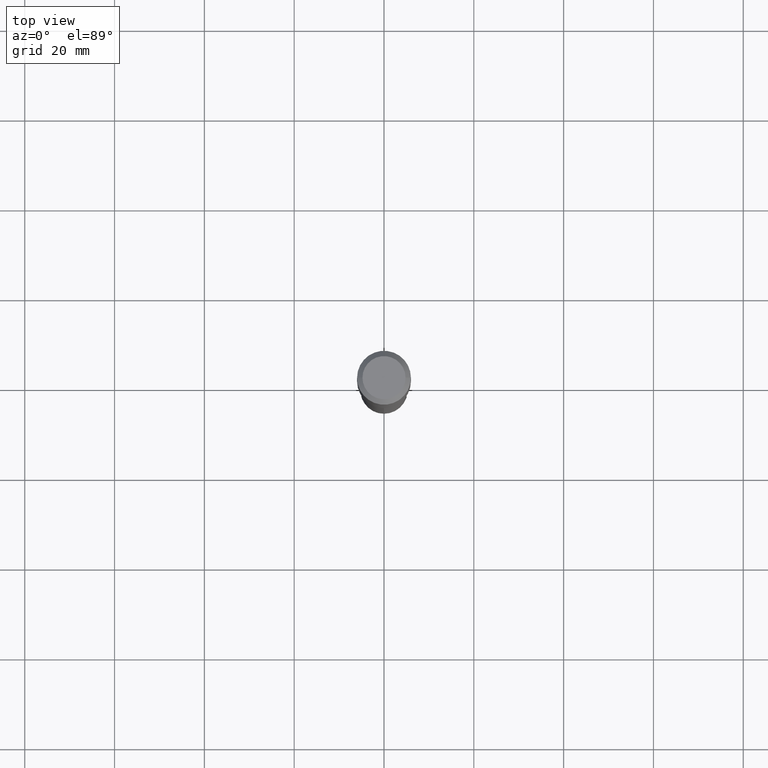
[diagram: clean part render]
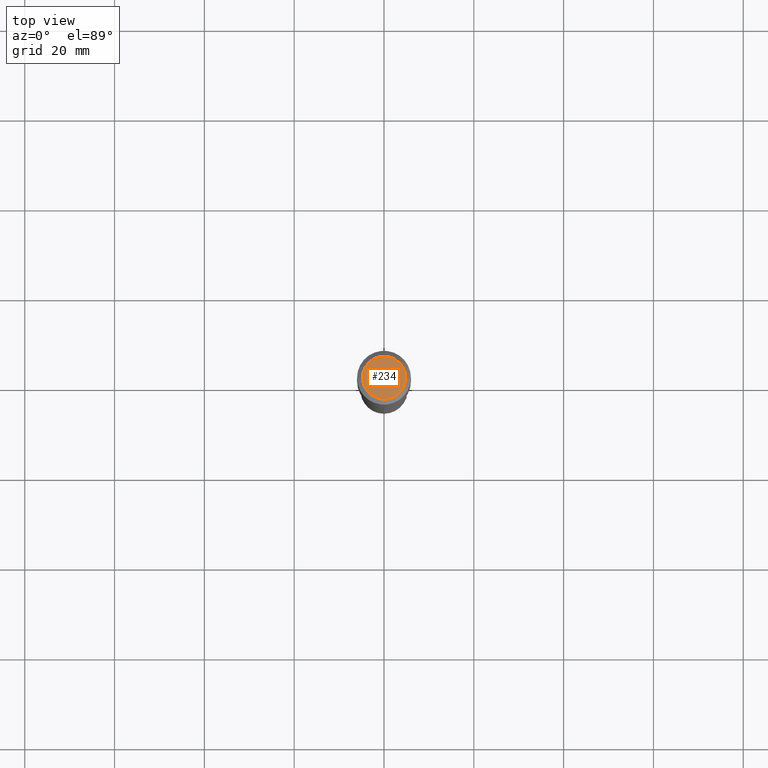
[diagram: same view with one face highlighted and labeled with its STEP entity id]
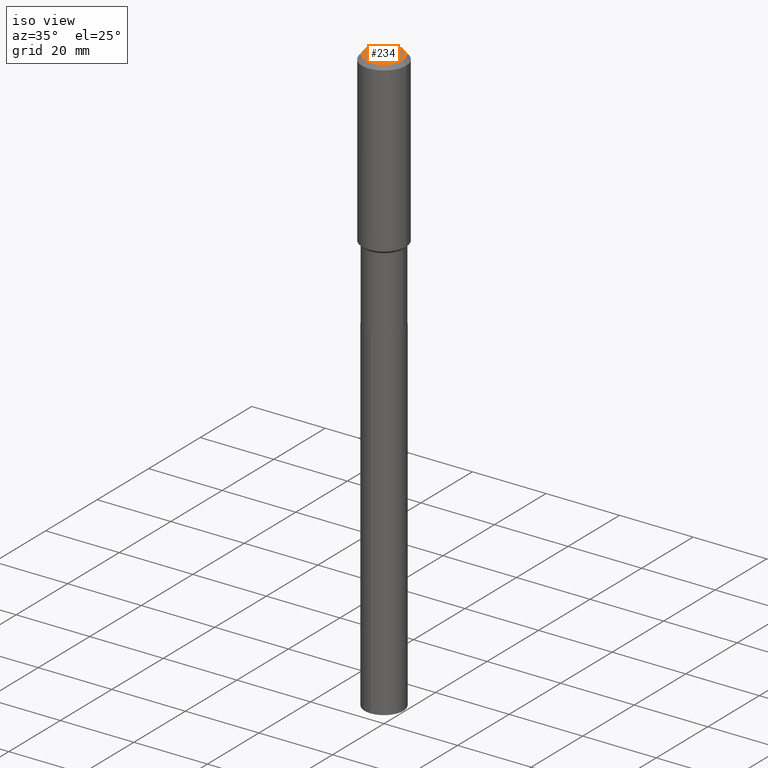
[diagram: same view with one face highlighted and labeled with its STEP entity id]
A machine part, top view. The second image highlights one B-rep face of the part: STEP entity #234.
A second angle (iso view) of the same face is appended — the face is thin or edge-on in the first view.
In plain terms, the highlighted planar face has unit normal (0, -0, -1).
Its self-contained STEP definition (entity closure, byte-faithful):
#4 = AXIS2_PLACEMENT_3D ( 'NONE', #208, #277, #324 ) ;
#14 = CARTESIAN_POINT ( 'NONE',  ( -4.713871149261273121E-47, 6.730158695841826722E-33, 1.927594061857931128E-18 ) ) ;
#35 = DIRECTION ( 'NONE',  ( -2.445468806185136597E-29, 3.491481338843145583E-15, 1.000000000000000000 ) ) ;
#58 = FACE_OUTER_BOUND ( 'NONE', #481, .T. ) ;
#80 = ORIENTED_EDGE ( 'NONE', *, *, #307, .T. ) ;
#140 = ORIENTED_EDGE ( 'NONE', *, *, #156, .T. ) ;
#151 = VERTEX_POINT ( 'NONE', #443 ) ;
#155 = CARTESIAN_POINT ( 'NONE',  ( -9.427742298522546243E-47, 1.346031739168365344E-32, 3.855188123715862256E-18 ) ) ;
#156 = EDGE_CURVE ( 'NONE', #436, #151, #186, .T. ) ;
#169 = DIRECTION ( 'NONE',  ( 2.438088387897960049E-29, -3.491481338843145188E-15, -1.000000000000000000 ) ) ;
#186 = CIRCLE ( 'NONE', #236, 0.1889600000000000168 ) ;
#208 = CARTESIAN_POINT ( 'NONE',  ( -9.427742298522546243E-47, 1.346031739168365344E-32, 3.855188123715862256E-18 ) ) ;
#234 = ADVANCED_FACE ( 'NONE', ( #58 ), #343, .F. ) ;
#236 = AXIS2_PLACEMENT_3D ( 'NONE', #155, #35, #328 ) ;
#260 = CIRCLE ( 'NONE', #4, 0.1889600000000000168 ) ;
#277 = DIRECTION ( 'NONE',  ( -2.445468806185136597E-29, 3.491481338843145583E-15, 1.000000000000000000 ) ) ;
#307 = EDGE_CURVE ( 'NONE', #151, #436, #260, .T. ) ;
#310 = DIRECTION ( 'NONE',  ( -1.000000000000000000, 6.982962677686265922E-15, -4.876176775795935793E-29 ) ) ;
#324 = DIRECTION ( 'NONE',  ( 1.000000000000000000, -6.982962677686266711E-15, 4.876185090822587894E-29 ) ) ;
#328 = DIRECTION ( 'NONE',  ( 1.000000000000000000, -6.982962677686266711E-15, 4.876185090822587894E-29 ) ) ;
#343 = PLANE ( 'NONE',  #489 ) ;
#436 = VERTEX_POINT ( 'NONE', #456 ) ;
#443 = CARTESIAN_POINT ( 'NONE',  ( 0.1889600000000000168, -1.540873453589747738E-15, 3.855188123725863225E-18 ) ) ;
#456 = CARTESIAN_POINT ( 'NONE',  ( -0.1889600000000000168, 1.401969416799070942E-15, 3.855188123706346622E-18 ) ) ;
#481 = EDGE_LOOP ( 'NONE', ( #140, #80 ) ) ;
#489 = AXIS2_PLACEMENT_3D ( 'NONE', #14, #169, #310 ) ;